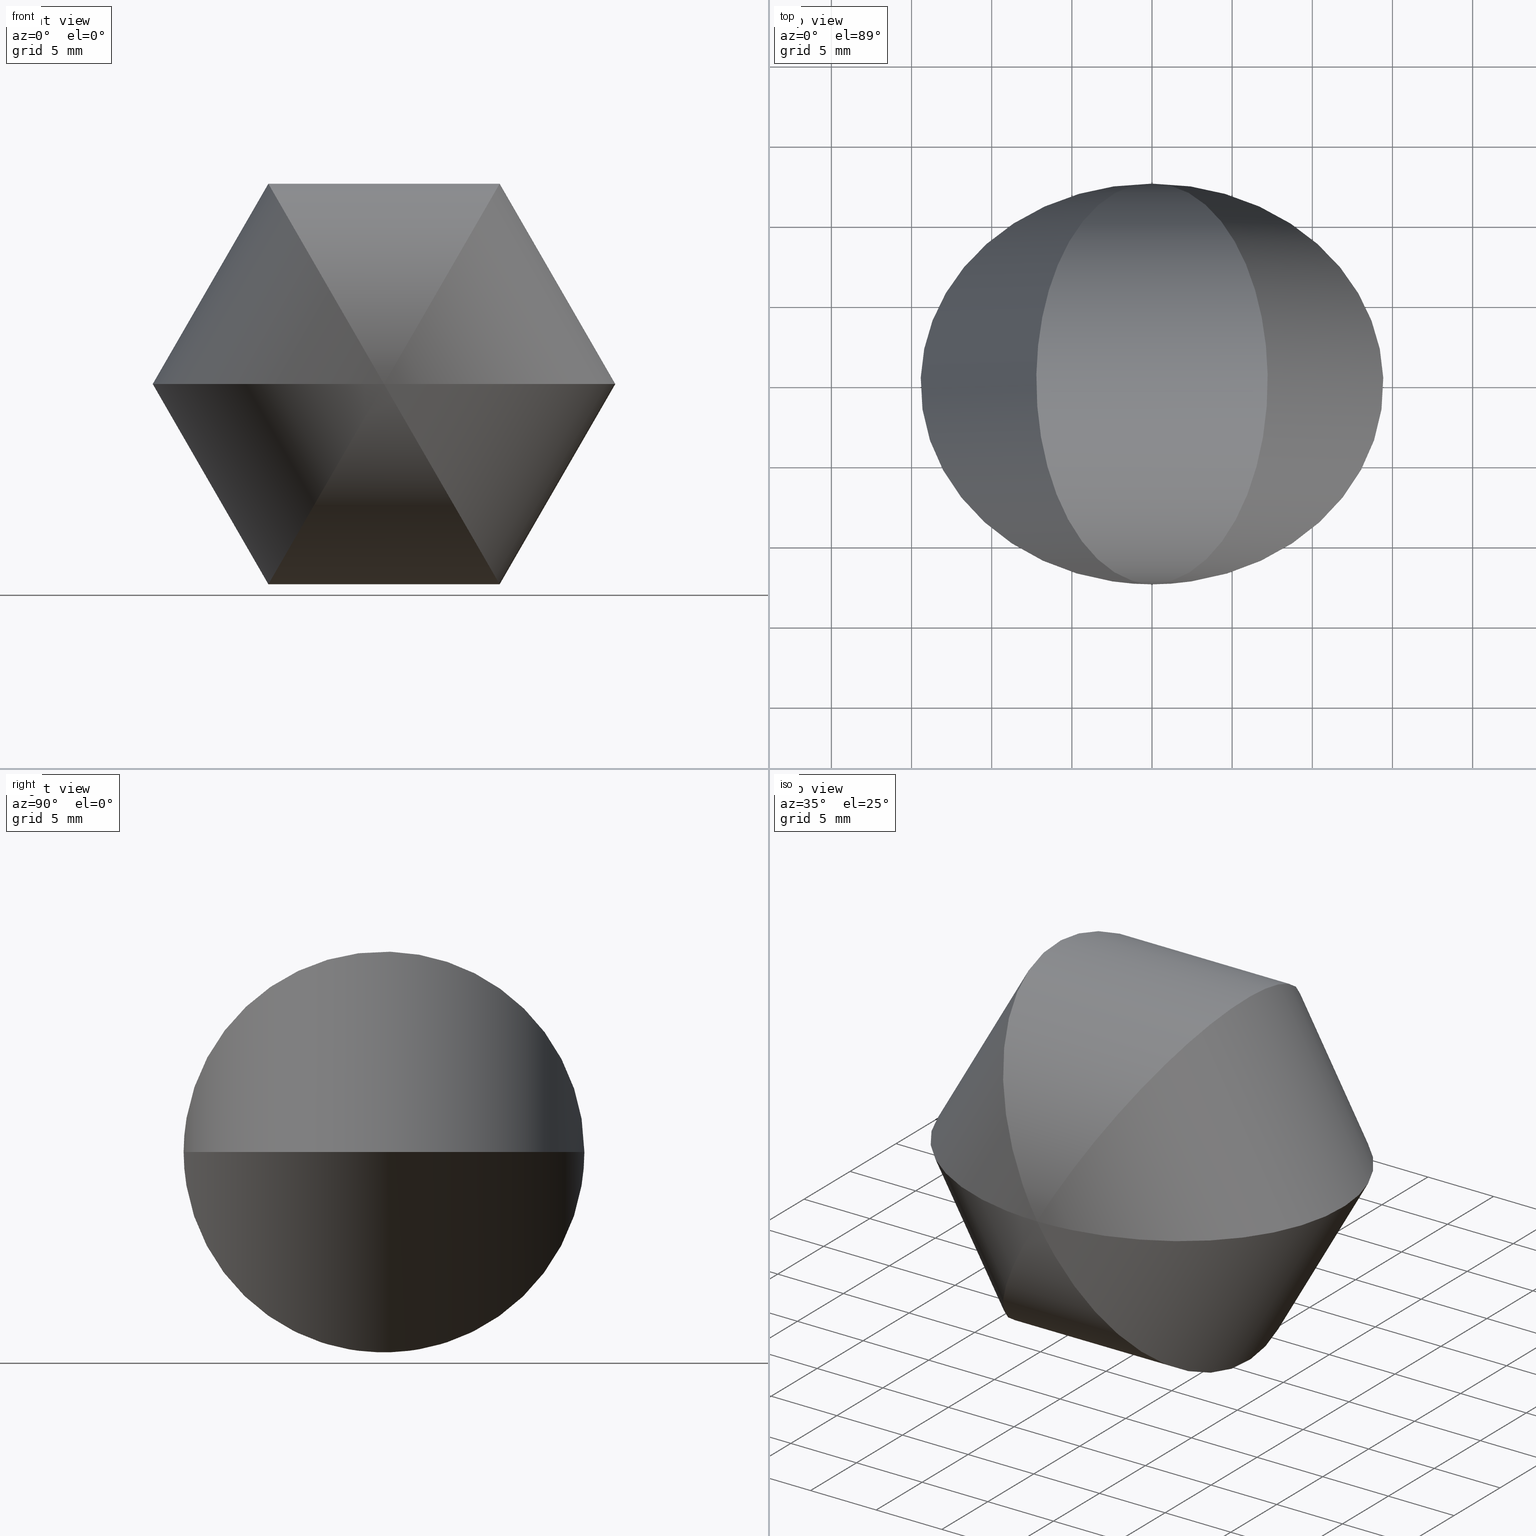
[diagram: canonical four-view strip — front | top / right | iso, engineering-drawing reading convention]
A machine part, canonical four-view strip (front | top / right | iso — engineering-drawing reading convention). The complete STEP part file that produces these views, byte-faithful:
ISO-10303-21;
HEADER;
FILE_DESCRIPTION (( 'STEP AP203' ),
    '1' );
FILE_NAME ('3558.STEP',
    '2021-09-29T12:57:13',
    ( '' ),
    ( '' ),
    'SwSTEP 2.0',
    'SolidWorks 2018',
    '' );
FILE_SCHEMA (( 'CONFIG_CONTROL_DESIGN' ));
ENDSEC;

DATA;
#1 = SECURITY_CLASSIFICATION ( '', '', #132 ) ;
#2 = COORDINATED_UNIVERSAL_TIME_OFFSET ( 1, 0, .AHEAD. ) ;
#3 = DATE_AND_TIME ( #21, #159 ) ;
#4 = PERSON_AND_ORGANIZATION_ROLE ( 'design_owner' ) ;
#5 = VERTEX_POINT ( 'NONE', #180 ) ;
#6 = EDGE_CURVE ( 'NONE', #71, #5, #264, .T. ) ;
#7 = DATE_AND_TIME ( #260, #218 ) ;
#8 = CYLINDRICAL_SURFACE ( 'NONE', #141, 12.50000000000000000 ) ;
#9 = CARTESIAN_POINT ( 'NONE',  ( -0.000000000000000000, 0.000000000000000000, 0.000000000000000000 ) ) ;
#10 = DIRECTION ( 'NONE',  ( 0.8660254037844362651, 2.651438096812259522E-16, 0.5000000000000038858 ) ) ;
#11 = MECHANICAL_CONTEXT ( 'NONE', #13, 'mechanical' ) ;
#12 = DESIGN_CONTEXT ( 'detailed design', #77, 'design' ) ;
#13 = APPLICATION_CONTEXT ( 'configuration controlled 3d designs of mechanical parts and assemblies' ) ;
#14 = CALENDAR_DATE ( 2021, 29, 9 ) ;
#15 = APPROVAL_ROLE ( '' ) ;
#16 = ADVANCED_FACE ( 'NONE', ( #186 ), #84, .T. ) ;
#17 = PRODUCT_DEFINITION ( 'UNKNOWN', '', #98, #12 ) ;
#18 = DATE_TIME_ROLE ( 'creation_date' ) ;
#19 = ORIENTED_EDGE ( 'NONE', *, *, #215, .T. ) ;
#20 = ADVANCED_FACE ( 'NONE', ( #153 ), #8, .T. ) ;
#21 = CALENDAR_DATE ( 2021, 29, 9 ) ;
#22 = CC_DESIGN_DATE_AND_TIME_ASSIGNMENT ( #170, #222, ( #17 ) ) ;
#23 = EDGE_LOOP ( 'NONE', ( #254, #68 ) ) ;
#24 = DATE_AND_TIME ( #175, #156 ) ;
#25 = APPROVAL_DATE_TIME ( #251, #148 ) ;
#26 = CARTESIAN_POINT ( 'NONE',  ( 14.43375672974068102, 12.50000000000000533, -25.00000000000000000 ) ) ;
#27 = ORIENTED_EDGE ( 'NONE', *, *, #48, .F. ) ;
#28 = CARTESIAN_POINT ( 'NONE',  ( -3.469446951953614189E-15, 12.50000000000000000, 0.000000000000000000 ) ) ;
#29 = DIRECTION ( 'NONE',  ( -0.5000000000000041078, -4.592425496802587777E-16, 0.8660254037844363761 ) ) ;
#30 = CC_DESIGN_PERSON_AND_ORGANIZATION_ASSIGNMENT ( #31, #79, ( #98 ) ) ;
#31 = PERSON_AND_ORGANIZATION ( #154, #143 ) ;
#32 = ORIENTED_EDGE ( 'NONE', *, *, #6, .T. ) ;
#33 = APPROVAL_PERSON_ORGANIZATION ( #183, #119, #109 ) ;
#34 = CARTESIAN_POINT ( 'NONE',  ( -3.469446951953614189E-15, 12.50000000000000000, 0.000000000000000000 ) ) ;
#35 = PERSON_AND_ORGANIZATION_ROLE ( 'design_owner' ) ;
#36 = PERSON_AND_ORGANIZATION_ROLE ( 'classification_officer' ) ;
#37 = CC_DESIGN_PERSON_AND_ORGANIZATION_ASSIGNMENT ( #207, #231, ( #1 ) ) ;
#38 = APPROVAL_DATE_TIME ( #24, #70 ) ;
#39 = COORDINATED_UNIVERSAL_TIME_OFFSET ( 1, 0, .AHEAD. ) ;
#40 = ORIENTED_EDGE ( 'NONE', *, *, #212, .T. ) ;
#41 = PERSON_AND_ORGANIZATION ( #154, #143 ) ;
#42 = CC_DESIGN_APPROVAL ( #94, ( #98 ) ) ;
#43 = PERSON_AND_ORGANIZATION ( #154, #143 ) ;
#44 = EDGE_CURVE ( 'NONE', #5, #71, #142, .T. ) ;
#45 = CYLINDRICAL_SURFACE ( 'NONE', #163, 12.50000000000000533 ) ;
#46 = APPROVAL_PERSON_ORGANIZATION ( #113, #148, #15 ) ;
#47 = CARTESIAN_POINT ( 'NONE',  ( 0.000000000000000000, 0.000000000000000000, 0.000000000000000000 ) ) ;
#48 = EDGE_CURVE ( 'NONE', #71, #5, #128, .T. ) ;
#49 = CARTESIAN_POINT ( 'NONE',  ( 28.86751345948130520, 12.50000000000001599, 1.005671978138651586E-13 ) ) ;
#50 = CARTESIAN_POINT ( 'NONE',  ( 3.469446951953614189E-15, -12.50000000000000000, 1.734723475976807094E-15 ) ) ;
#51 = SHAPE_DEFINITION_REPRESENTATION ( #120, #96 ) ;
#52 = CARTESIAN_POINT ( 'NONE',  ( -14.43375672974055668, -12.50000000000000533, -25.00000000000000000 ) ) ;
#53 = LOCAL_TIME ( 14, 57, 13.00000000000000000, #39 ) ;
#54 = CARTESIAN_POINT ( 'NONE',  ( -28.86751345948130520, -12.50000000000001066, -2.968450907054041726E-13 ) ) ;
#55 = DIRECTION ( 'NONE',  ( 0.000000000000000000, 0.000000000000000000, 1.000000000000000000 ) ) ;
#56 = EDGE_LOOP ( 'NONE', ( #40, #200 ) ) ;
#57 = APPROVAL_DATE_TIME ( #3, #119 ) ;
#58 = CARTESIAN_POINT ( 'NONE',  ( -28.86751345948131586, 12.50000000000000000, -3.056832176947783610E-13 ) ) ;
#59 = APPROVAL_ROLE ( '' ) ;
#60 = DIRECTION ( 'NONE',  ( -1.000000000000000000, -6.123233995736766282E-16, 0.000000000000000000 ) ) ;
#61 = PERSON_AND_ORGANIZATION ( #154, #143 ) ;
#62 = MECHANICAL_CONTEXT ( 'NONE', #99, 'mechanical' ) ;
#63 = APPROVAL_ROLE ( '' ) ;
#64 = PRODUCT_DEFINITION_FORMATION_WITH_SPECIFIED_SOURCE ( 'ANY', '', #250, .NOT_KNOWN. ) ;
#65 = FACE_OUTER_BOUND ( 'NONE', #56, .T. ) ;
#66 = COORDINATED_UNIVERSAL_TIME_OFFSET ( 1, 0, .AHEAD. ) ;
#67 =( GEOMETRIC_REPRESENTATION_CONTEXT ( 3 ) GLOBAL_UNCERTAINTY_ASSIGNED_CONTEXT ( ( #92 ) ) GLOBAL_UNIT_ASSIGNED_CONTEXT ( ( #166, #149, #243 ) ) REPRESENTATION_CONTEXT ( 'NONE', 'WORKASPACE' ) );
#68 = ORIENTED_EDGE ( 'NONE', *, *, #44, .F. ) ;
#69 = APPROVAL ( #91, 'UNSPECIFIED' ) ;
#70 = APPROVAL ( #185, 'UNSPECIFIED' ) ;
#71 = VERTEX_POINT ( 'NONE', #164 ) ;
#72 = CARTESIAN_POINT ( 'NONE',  ( -14.43375672974079116, -12.50000000000000533, 25.00000000000000000 ) ) ;
#73 = CARTESIAN_POINT ( 'NONE',  ( -3.469446951953614189E-15, 12.50000000000000000, 0.000000000000000000 ) ) ;
#74 = SECURITY_CLASSIFICATION ( '', '', #225 ) ;
#75 = CARTESIAN_POINT ( 'NONE',  ( 3.469446951953614189E-15, -12.50000000000000000, 1.734723475976807094E-15 ) ) ;
#76 = CYLINDRICAL_SURFACE ( 'NONE', #266, 12.50000000000000000 ) ;
#77 = APPLICATION_CONTEXT ( 'configuration controlled 3d designs of mechanical parts and assemblies' ) ;
#78 = CC_DESIGN_PERSON_AND_ORGANIZATION_ASSIGNMENT ( #61, #169, ( #17 ) ) ;
#79 = PERSON_AND_ORGANIZATION_ROLE ( 'design_supplier' ) ;
#80 = FACE_OUTER_BOUND ( 'NONE', #124, .T. ) ;
#81 = CC_DESIGN_APPROVAL ( #172, ( #74 ) ) ;
#82 = DIRECTION ( 'NONE',  ( 0.000000000000000000, 0.000000000000000000, 1.000000000000000000 ) ) ;
#83 = CC_DESIGN_SECURITY_CLASSIFICATION ( #1, ( #64 ) ) ;
#84 = CYLINDRICAL_SURFACE ( 'NONE', #246, 12.50000000000000533 ) ;
#85 = PERSON_AND_ORGANIZATION_ROLE ( 'creator' ) ;
#86 = CC_DESIGN_PERSON_AND_ORGANIZATION_ASSIGNMENT ( #247, #36, ( #74 ) ) ;
#87 = APPROVAL_PERSON_ORGANIZATION ( #267, #69, #206 ) ;
#88 = CLOSED_SHELL ( 'NONE', ( #20, #189, #16, #230, #192, #263 ) ) ;
#89 = CC_DESIGN_DATE_AND_TIME_ASSIGNMENT ( #151, #108, ( #1 ) ) ;
#90 = PRODUCT_RELATED_PRODUCT_CATEGORY ( 'detail', '', ( #136 ) ) ;
#91 = APPROVAL_STATUS ( 'not_yet_approved' ) ;
#92 = UNCERTAINTY_MEASURE_WITH_UNIT (LENGTH_MEASURE( 1.000000000000000082E-05 ), #166, 'distance_accuracy_value', 'NONE');
#93 = LOCAL_TIME ( 14, 57, 13.00000000000000000, #191 ) ;
#94 = APPROVAL ( #261, 'UNSPECIFIED' ) ;
#95 = DIRECTION ( 'NONE',  ( 0.000000000000000000, 0.000000000000000000, -1.000000000000000000 ) ) ;
#96 = ADVANCED_BREP_SHAPE_REPRESENTATION ( '3558', ( #137, #220 ), #67 ) ;
#97 = CARTESIAN_POINT ( 'NONE',  ( 3.469446951953614189E-15, -12.50000000000000000, 1.734723475976807094E-15 ) ) ;
#98 = PRODUCT_DEFINITION_FORMATION_WITH_SPECIFIED_SOURCE ( 'ANY', '', #136, .NOT_KNOWN. ) ;
#99 = APPLICATION_CONTEXT ( 'configuration controlled 3d designs of mechanical parts and assemblies' ) ;
#100 = CARTESIAN_POINT ( 'NONE',  ( -0.000000000000000000, 0.000000000000000000, 0.000000000000000000 ) ) ;
#101 = DIRECTION ( 'NONE',  ( 1.000000000000000000, 0.000000000000000000, 0.000000000000000000 ) ) ;
#102 = CALENDAR_DATE ( 2021, 29, 9 ) ;
#103 = APPROVAL_ROLE ( '' ) ;
#104 = DIRECTION ( 'NONE',  ( 0.8660254037844398178, 2.651438096812270862E-16, -0.4999999999999979461 ) ) ;
#105 = PERSON_AND_ORGANIZATION ( #154, #143 ) ;
#106 = PRODUCT_DEFINITION ( 'UNKNOWN', '', #64, #157 ) ;
#107 =( BOUNDED_CURVE ( )  B_SPLINE_CURVE ( 3, ( #259, #165, #146, #242 ),
 .UNSPECIFIED., .F., .T. ) 
 B_SPLINE_CURVE_WITH_KNOTS ( ( 4, 4 ),
 ( 4.712388980384689674, 7.853981633974482790 ),
 .UNSPECIFIED. ) 
 CURVE ( )  GEOMETRIC_REPRESENTATION_ITEM ( )  RATIONAL_B_SPLINE_CURVE ( ( 1.000000000000000000, 0.3333333333333333703, 0.3333333333333333703, 1.000000000000000000 ) ) 
 REPRESENTATION_ITEM ( '' )  );
#108 = DATE_TIME_ROLE ( 'classification_date' ) ;
#109 = APPROVAL_ROLE ( '' ) ;
#110 = CC_DESIGN_APPROVAL ( #69, ( #64 ) ) ;
#111 = DATE_AND_TIME ( #233, #53 ) ;
#112 = CALENDAR_DATE ( 2021, 29, 9 ) ;
#113 = PERSON_AND_ORGANIZATION ( #154, #143 ) ;
#114 = FACE_OUTER_BOUND ( 'NONE', #236, .T. ) ;
#115 = APPROVAL_DATE_TIME ( #111, #172 ) ;
#116 = PERSON_AND_ORGANIZATION ( #154, #143 ) ;
#117 = CARTESIAN_POINT ( 'NONE',  ( 0.000000000000000000, 0.000000000000000000, 0.000000000000000000 ) ) ;
#118 = PERSON_AND_ORGANIZATION ( #154, #143 ) ;
#119 = APPROVAL ( #211, 'UNSPECIFIED' ) ;
#120 = PRODUCT_DEFINITION_SHAPE ( 'NONE', 'NONE',  #106 ) ;
#121 = CARTESIAN_POINT ( 'NONE',  ( -3.469446951953614189E-15, 12.50000000000000000, 0.000000000000000000 ) ) ;
#122 = CC_DESIGN_PERSON_AND_ORGANIZATION_ASSIGNMENT ( #118, #85, ( #106 ) ) ;
#123 = DIRECTION ( 'NONE',  ( -0.4999999999999919509, -4.592425496802550306E-16, -0.8660254037844432595 ) ) ;
#124 = EDGE_LOOP ( 'NONE', ( #19, #27 ) ) ;
#125 = CALENDAR_DATE ( 2021, 29, 9 ) ;
#126 = CARTESIAN_POINT ( 'NONE',  ( 0.000000000000000000, 0.000000000000000000, 0.000000000000000000 ) ) ;
#127 = CC_DESIGN_DATE_AND_TIME_ASSIGNMENT ( #167, #18, ( #106 ) ) ;
#128 =( BOUNDED_CURVE ( )  B_SPLINE_CURVE ( 3, ( #28, #49, #257, #197 ),
 .UNSPECIFIED., .F., .T. ) 
 B_SPLINE_CURVE_WITH_KNOTS ( ( 4, 4 ),
 ( 4.712388980384689674, 7.853981633974482790 ),
 .UNSPECIFIED. ) 
 CURVE ( )  GEOMETRIC_REPRESENTATION_ITEM ( )  RATIONAL_B_SPLINE_CURVE ( ( 1.000000000000000000, 0.3333333333333333703, 0.3333333333333333703, 1.000000000000000000 ) ) 
 REPRESENTATION_ITEM ( '' )  );
#129 = DIRECTION ( 'NONE',  ( 0.8660254037844362651, 2.651438096812259522E-16, 0.5000000000000038858 ) ) ;
#130 = APPROVAL_STATUS ( 'not_yet_approved' ) ;
#131 = LOCAL_TIME ( 14, 57, 13.00000000000000000, #145 ) ;
#132 = SECURITY_CLASSIFICATION_LEVEL ( 'unclassified' ) ;
#133 = PERSON_AND_ORGANIZATION_ROLE ( 'design_supplier' ) ;
#134 = COORDINATED_UNIVERSAL_TIME_OFFSET ( 1, 0, .AHEAD. ) ;
#135 = APPLICATION_CONTEXT ( 'configuration controlled 3d designs of mechanical parts and assemblies' ) ;
#136 = PRODUCT ( '3558', '3558', '', ( #11 ) ) ;
#137 = MANIFOLD_SOLID_BREP ( 'Kreismuster2', #88 ) ;
#138 = CC_DESIGN_SECURITY_CLASSIFICATION ( #74, ( #98 ) ) ;
#139 = EDGE_LOOP ( 'NONE', ( #221, #32 ) ) ;
#140 = COORDINATED_UNIVERSAL_TIME_OFFSET ( 1, 0, .AHEAD. ) ;
#141 = AXIS2_PLACEMENT_3D ( 'NONE', #47, #255, #95 ) ;
#142 =( BOUNDED_CURVE ( )  B_SPLINE_CURVE ( 3, ( #97, #52, #181, #177 ),
 .UNSPECIFIED., .F., .F. ) 
 B_SPLINE_CURVE_WITH_KNOTS ( ( 4, 4 ),
 ( 1.570796326794895892, 4.712388980384688786 ),
 .UNSPECIFIED. ) 
 CURVE ( )  GEOMETRIC_REPRESENTATION_ITEM ( )  RATIONAL_B_SPLINE_CURVE ( ( 1.000000000000000000, 0.3333333333333333703, 0.3333333333333333703, 1.000000000000000000 ) ) 
 REPRESENTATION_ITEM ( '' )  );
#143 = ORGANIZATION ( 'UNSPECIFIED', 'UNSPECIFIED', '' ) ;
#144 = ORIENTED_EDGE ( 'NONE', *, *, #6, .F. ) ;
#145 = COORDINATED_UNIVERSAL_TIME_OFFSET ( 1, 0, .AHEAD. ) ;
#146 = CARTESIAN_POINT ( 'NONE',  ( 14.43375672974057267, -12.49999999999999467, 25.00000000000000000 ) ) ;
#147 = CARTESIAN_POINT ( 'NONE',  ( 0.000000000000000000, 0.000000000000000000, 0.000000000000000000 ) ) ;
#148 = APPROVAL ( #188, 'UNSPECIFIED' ) ;
#149 =( NAMED_UNIT ( * ) PLANE_ANGLE_UNIT ( ) SI_UNIT ( $, .RADIAN. ) );
#150 = APPROVAL_DATE_TIME ( #199, #94 ) ;
#151 = DATE_AND_TIME ( #214, #173 ) ;
#152 = CC_DESIGN_APPROVAL ( #148, ( #1 ) ) ;
#153 = FACE_OUTER_BOUND ( 'NONE', #139, .T. ) ;
#154 = PERSON ( 'UNSPECIFIED', 'UNSPECIFIED', 'UNSPECIFIED', ('UNSPECIFIED'), ('UNSPECIFIED'), ('UNSPECIFIED') ) ;
#155 = EDGE_CURVE ( 'NONE', #71, #5, #174, .T. ) ;
#156 = LOCAL_TIME ( 14, 57, 13.00000000000000000, #140 ) ;
#157 = DESIGN_CONTEXT ( 'detailed design', #135, 'design' ) ;
#158 = CC_DESIGN_DATE_AND_TIME_ASSIGNMENT ( #227, #245, ( #74 ) ) ;
#159 = LOCAL_TIME ( 14, 57, 13.00000000000000000, #232 ) ;
#160 = CC_DESIGN_PERSON_AND_ORGANIZATION_ASSIGNMENT ( #208, #133, ( #64 ) ) ;
#161 =( BOUNDED_CURVE ( )  B_SPLINE_CURVE ( 3, ( #34, #58, #54, #219 ),
 .UNSPECIFIED., .F., .T. ) 
 B_SPLINE_CURVE_WITH_KNOTS ( ( 4, 4 ),
 ( 4.712388980384689674, 7.853981633974482790 ),
 .UNSPECIFIED. ) 
 CURVE ( )  GEOMETRIC_REPRESENTATION_ITEM ( )  RATIONAL_B_SPLINE_CURVE ( ( 1.000000000000000000, 0.3333333333333333703, 0.3333333333333333703, 1.000000000000000000 ) ) 
 REPRESENTATION_ITEM ( '' )  );
#162 = COORDINATED_UNIVERSAL_TIME_OFFSET ( 1, 0, .AHEAD. ) ;
#163 = AXIS2_PLACEMENT_3D ( 'NONE', #100, #168, #129 ) ;
#164 = CARTESIAN_POINT ( 'NONE',  ( -3.469446951953614189E-15, 12.50000000000000000, 0.000000000000000000 ) ) ;
#165 = CARTESIAN_POINT ( 'NONE',  ( 14.43375672974055313, 12.50000000000001066, 25.00000000000000000 ) ) ;
#166 =( LENGTH_UNIT ( ) NAMED_UNIT ( * ) SI_UNIT ( .MILLI., .METRE. ) );
#167 = DATE_AND_TIME ( #125, #176 ) ;
#168 = DIRECTION ( 'NONE',  ( -0.5000000000000041078, -4.592425496802587777E-16, 0.8660254037844363761 ) ) ;
#169 = PERSON_AND_ORGANIZATION_ROLE ( 'creator' ) ;
#170 = DATE_AND_TIME ( #216, #262 ) ;
#171 = APPROVAL_DATE_TIME ( #7, #69 ) ;
#172 = APPROVAL ( #130, 'UNSPECIFIED' ) ;
#173 = LOCAL_TIME ( 14, 57, 13.00000000000000000, #223 ) ;
#174 =( BOUNDED_CURVE ( )  B_SPLINE_CURVE ( 3, ( #121, #238, #72, #50 ),
 .UNSPECIFIED., .F., .F. ) 
 B_SPLINE_CURVE_WITH_KNOTS ( ( 4, 4 ),
 ( 4.712388980384689674, 7.853981633974482790 ),
 .UNSPECIFIED. ) 
 CURVE ( )  GEOMETRIC_REPRESENTATION_ITEM ( )  RATIONAL_B_SPLINE_CURVE ( ( 1.000000000000000000, 0.3333333333333333703, 0.3333333333333333703, 1.000000000000000000 ) ) 
 REPRESENTATION_ITEM ( '' )  );
#175 = CALENDAR_DATE ( 2021, 29, 9 ) ;
#176 = LOCAL_TIME ( 14, 57, 13.00000000000000000, #134 ) ;
#177 = CARTESIAN_POINT ( 'NONE',  ( -3.469446951953614189E-15, 12.50000000000000000, 0.000000000000000000 ) ) ;
#178 = CYLINDRICAL_SURFACE ( 'NONE', #253, 12.50000000000000178 ) ;
#179 = AXIS2_PLACEMENT_3D ( 'NONE', #201, #82, #187 ) ;
#180 = CARTESIAN_POINT ( 'NONE',  ( 3.469446951953614189E-15, -12.50000000000000000, 1.734723475976807094E-15 ) ) ;
#181 = CARTESIAN_POINT ( 'NONE',  ( -14.43375672974056911, 12.49999999999998934, -25.00000000000001066 ) ) ;
#182 = CC_DESIGN_PERSON_AND_ORGANIZATION_ASSIGNMENT ( #105, #203, ( #98 ) ) ;
#183 = PERSON_AND_ORGANIZATION ( #154, #143 ) ;
#184 = CARTESIAN_POINT ( 'NONE',  ( 0.000000000000000000, 0.000000000000000000, -0.000000000000000000 ) ) ;
#185 = APPROVAL_STATUS ( 'not_yet_approved' ) ;
#186 = FACE_OUTER_BOUND ( 'NONE', #23, .T. ) ;
#187 = DIRECTION ( 'NONE',  ( 1.000000000000000000, 0.000000000000000000, 0.000000000000000000 ) ) ;
#188 = APPROVAL_STATUS ( 'not_yet_approved' ) ;
#189 = ADVANCED_FACE ( 'NONE', ( #114 ), #178, .T. ) ;
#190 = CC_DESIGN_APPROVAL ( #70, ( #17 ) ) ;
#191 = COORDINATED_UNIVERSAL_TIME_OFFSET ( 1, 0, .AHEAD. ) ;
#192 = ADVANCED_FACE ( 'NONE', ( #248 ), #76, .T. ) ;
#193 = ORIENTED_EDGE ( 'NONE', *, *, #48, .T. ) ;
#194 = AXIS2_PLACEMENT_3D ( 'NONE', #184, #123, #202 ) ;
#195 = APPROVAL_PERSON_ORGANIZATION ( #116, #70, #103 ) ;
#196 = EDGE_LOOP ( 'NONE', ( #241, #226 ) ) ;
#197 = CARTESIAN_POINT ( 'NONE',  ( 3.469446951953614189E-15, -12.50000000000000000, 1.734723475976807094E-15 ) ) ;
#198 = CC_DESIGN_APPROVAL ( #119, ( #106 ) ) ;
#199 = DATE_AND_TIME ( #112, #258 ) ;
#200 = ORIENTED_EDGE ( 'NONE', *, *, #155, .F. ) ;
#201 = CARTESIAN_POINT ( 'NONE',  ( 0.000000000000000000, 0.000000000000000000, 0.000000000000000000 ) ) ;
#202 = DIRECTION ( 'NONE',  ( -0.8660254037844432595, -2.651438096812281708E-16, 0.4999999999999919509 ) ) ;
#203 = PERSON_AND_ORGANIZATION_ROLE ( 'creator' ) ;
#204 = DIRECTION ( 'NONE',  ( 0.000000000000000000, 0.000000000000000000, 1.000000000000000000 ) ) ;
#205 = CC_DESIGN_PERSON_AND_ORGANIZATION_ASSIGNMENT ( #43, #4, ( #250 ) ) ;
#206 = APPROVAL_ROLE ( '' ) ;
#207 = PERSON_AND_ORGANIZATION ( #154, #143 ) ;
#208 = PERSON_AND_ORGANIZATION ( #154, #143 ) ;
#209 = CC_DESIGN_PERSON_AND_ORGANIZATION_ASSIGNMENT ( #265, #234, ( #64 ) ) ;
#210 = PERSON_AND_ORGANIZATION ( #154, #143 ) ;
#211 = APPROVAL_STATUS ( 'not_yet_approved' ) ;
#212 = EDGE_CURVE ( 'NONE', #71, #5, #161, .T. ) ;
#213 = CYLINDRICAL_SURFACE ( 'NONE', #194, 12.50000000000000000 ) ;
#214 = CALENDAR_DATE ( 2021, 29, 9 ) ;
#215 = EDGE_CURVE ( 'NONE', #71, #5, #107, .T. ) ;
#216 = CALENDAR_DATE ( 2021, 29, 9 ) ;
#217 = CARTESIAN_POINT ( 'NONE',  ( 14.43375672974068458, -12.49999999999999467, -25.00000000000000000 ) ) ;
#218 = LOCAL_TIME ( 14, 57, 13.00000000000000000, #66 ) ;
#219 = CARTESIAN_POINT ( 'NONE',  ( 3.469446951953614189E-15, -12.50000000000000000, 1.734723475976807094E-15 ) ) ;
#220 = AXIS2_PLACEMENT_3D ( 'NONE', #147, #204, #101 ) ;
#221 = ORIENTED_EDGE ( 'NONE', *, *, #44, .T. ) ;
#222 = DATE_TIME_ROLE ( 'creation_date' ) ;
#223 = COORDINATED_UNIVERSAL_TIME_OFFSET ( 1, 0, .AHEAD. ) ;
#224 = APPLICATION_PROTOCOL_DEFINITION ( 'international standard', 'config_control_design', 1994, #13 ) ;
#225 = SECURITY_CLASSIFICATION_LEVEL ( 'unclassified' ) ;
#226 = ORIENTED_EDGE ( 'NONE', *, *, #215, .F. ) ;
#227 = DATE_AND_TIME ( #102, #131 ) ;
#228 = APPLICATION_PROTOCOL_DEFINITION ( 'international standard', 'config_control_design', 1994, #135 ) ;
#229 = APPLICATION_PROTOCOL_DEFINITION ( 'international standard', 'config_control_design', 1994, #99 ) ;
#230 = ADVANCED_FACE ( 'NONE', ( #80 ), #45, .T. ) ;
#231 = PERSON_AND_ORGANIZATION_ROLE ( 'classification_officer' ) ;
#232 = COORDINATED_UNIVERSAL_TIME_OFFSET ( 1, 0, .AHEAD. ) ;
#233 = CALENDAR_DATE ( 2021, 29, 9 ) ;
#234 = PERSON_AND_ORGANIZATION_ROLE ( 'creator' ) ;
#235 = PRODUCT_DEFINITION_SHAPE ( 'NONE', 'NONE',  #17 ) ;
#236 = EDGE_LOOP ( 'NONE', ( #193, #144 ) ) ;
#237 = APPROVAL_PERSON_ORGANIZATION ( #41, #172, #63 ) ;
#238 = CARTESIAN_POINT ( 'NONE',  ( -14.43375672974080715, 12.50000000000000000, 25.00000000000000000 ) ) ;
#239 = PERSON_AND_ORGANIZATION ( #154, #143 ) ;
#240 = DIRECTION ( 'NONE',  ( 0.4999999999999980016, -1.530808498934197734E-16, 0.8660254037844398178 ) ) ;
#241 = ORIENTED_EDGE ( 'NONE', *, *, #155, .T. ) ;
#242 = CARTESIAN_POINT ( 'NONE',  ( 3.469446951953614189E-15, -12.50000000000000000, 1.734723475976807094E-15 ) ) ;
#243 =( NAMED_UNIT ( * ) SI_UNIT ( $, .STERADIAN. ) SOLID_ANGLE_UNIT ( ) );
#244 = APPLICATION_PROTOCOL_DEFINITION ( 'international standard', 'config_control_design', 1994, #77 ) ;
#245 = DATE_TIME_ROLE ( 'classification_date' ) ;
#246 = AXIS2_PLACEMENT_3D ( 'NONE', #9, #29, #10 ) ;
#247 = PERSON_AND_ORGANIZATION ( #154, #143 ) ;
#248 = FACE_OUTER_BOUND ( 'NONE', #196, .T. ) ;
#249 = PRODUCT_RELATED_PRODUCT_CATEGORY ( 'detail', '', ( #250 ) ) ;
#250 = PRODUCT ( '3558', '3558', '', ( #62 ) ) ;
#251 = DATE_AND_TIME ( #14, #93 ) ;
#252 = APPROVAL_PERSON_ORGANIZATION ( #210, #94, #59 ) ;
#253 = AXIS2_PLACEMENT_3D ( 'NONE', #117, #240, #104 ) ;
#254 = ORIENTED_EDGE ( 'NONE', *, *, #212, .F. ) ;
#255 = DIRECTION ( 'NONE',  ( 1.000000000000000000, 0.000000000000000000, 0.000000000000000000 ) ) ;
#256 = CC_DESIGN_PERSON_AND_ORGANIZATION_ASSIGNMENT ( #239, #35, ( #136 ) ) ;
#257 = CARTESIAN_POINT ( 'NONE',  ( 28.86751345948131586, -12.49999999999999112, 9.172907082449091971E-14 ) ) ;
#258 = LOCAL_TIME ( 14, 57, 13.00000000000000000, #162 ) ;
#259 = CARTESIAN_POINT ( 'NONE',  ( -3.469446951953614189E-15, 12.50000000000000000, 0.000000000000000000 ) ) ;
#260 = CALENDAR_DATE ( 2021, 29, 9 ) ;
#261 = APPROVAL_STATUS ( 'not_yet_approved' ) ;
#262 = LOCAL_TIME ( 14, 57, 13.00000000000000000, #2 ) ;
#263 = ADVANCED_FACE ( 'NONE', ( #65 ), #213, .T. ) ;
#264 =( BOUNDED_CURVE ( )  B_SPLINE_CURVE ( 3, ( #73, #26, #217, #75 ),
 .UNSPECIFIED., .F., .T. ) 
 B_SPLINE_CURVE_WITH_KNOTS ( ( 4, 4 ),
 ( 4.712388980384689674, 7.853981633974482790 ),
 .UNSPECIFIED. ) 
 CURVE ( )  GEOMETRIC_REPRESENTATION_ITEM ( )  RATIONAL_B_SPLINE_CURVE ( ( 1.000000000000000000, 0.3333333333333333703, 0.3333333333333333703, 1.000000000000000000 ) ) 
 REPRESENTATION_ITEM ( '' )  );
#265 = PERSON_AND_ORGANIZATION ( #154, #143 ) ;
#266 = AXIS2_PLACEMENT_3D ( 'NONE', #126, #60, #55 ) ;
#267 = PERSON_AND_ORGANIZATION ( #154, #143 ) ;
ENDSEC;
END-ISO-10303-21;
